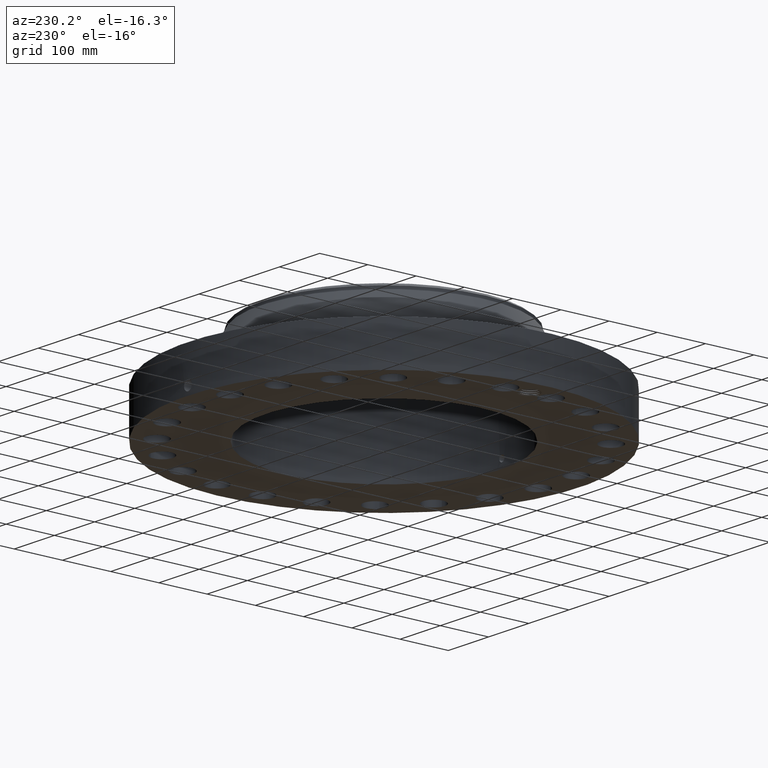
[diagram: clean part render]
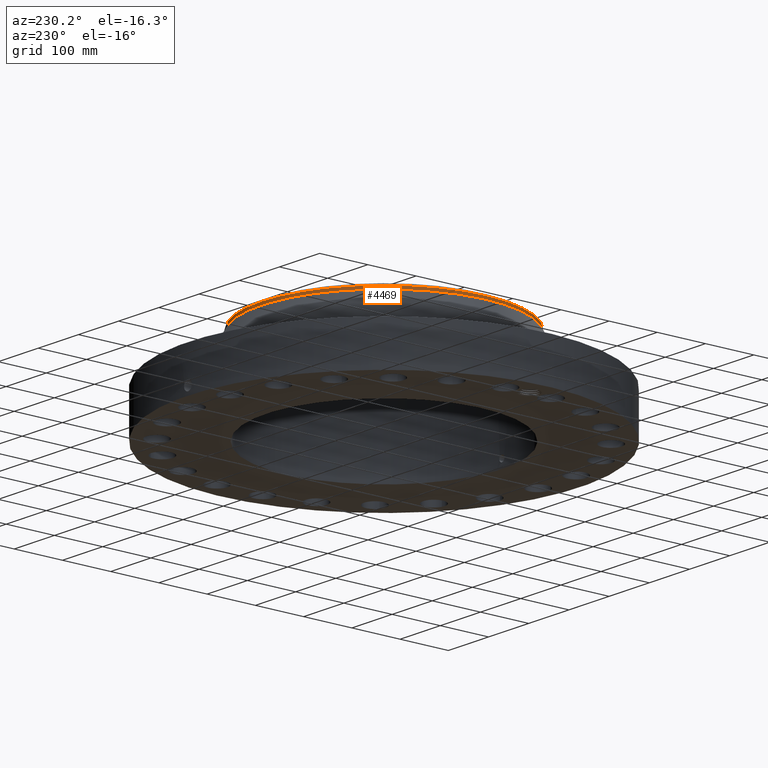
[diagram: same view with one face highlighted and labeled with its STEP entity id]
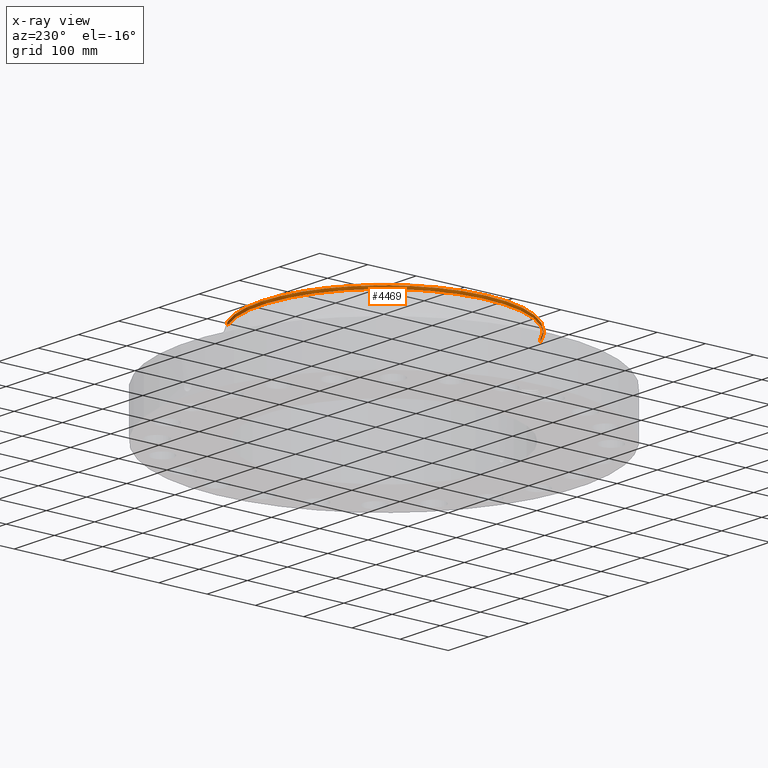
[diagram: x-ray of the same camera — body ghosted, the highlighted face saturated]
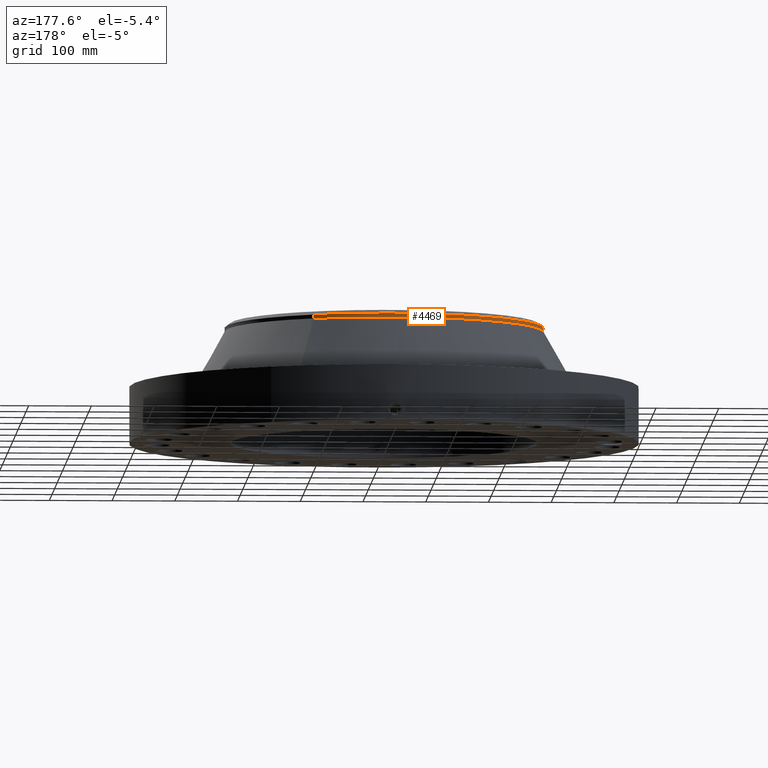
[diagram: same view with one face highlighted and labeled with its STEP entity id]
A machine part, auxiliary view. The second image highlights one B-rep face of the part: STEP entity #4469.
The next image is the same camera in x-ray: the body ghosted, the highlighted face saturated — about 1% of this face is hidden behind the body in this view.
A second angle (auxiliary view) of the same face is appended — the face is thin or edge-on in the first view.
In plain terms, the highlighted cylindrical surface (partial cylindrical patch) has radius 254 mm, axis along (0, 0, -1).
Its self-contained STEP definition (entity closure, byte-faithful):
#3645=AXIS2_PLACEMENT_3D('Circle Axis2P3D',#3643,#3644,$) ;
#4084=AXIS2_PLACEMENT_3D('Circle Axis2P3D',#4082,#4083,$) ;
#4111=AXIS2_PLACEMENT_3D('Circle Axis2P3D',#4109,#4110,$) ;
#4442=AXIS2_PLACEMENT_3D('Cylinder Axis2P3D',#4439,#4440,#4441) ;
#3621=CARTESIAN_POINT('Vertex',(4.79425538606,8.77582561894,7.28645135497)) ;
#3628=CARTESIAN_POINT('Vertex',(-4.79425538606,-8.77582561894,7.28645135497)) ;
#3643=CARTESIAN_POINT('Axis2P3D Location',(0.,0.,7.28645135497)) ;
#4079=CARTESIAN_POINT('Vertex',(-4.79425538606,8.77582561894,7.52267182741)) ;
#4082=CARTESIAN_POINT('Axis2P3D Location',(0.,0.,7.52267182741)) ;
#4086=CARTESIAN_POINT('Vertex',(-4.79425538606,-8.77582561894,7.52267182741)) ;
#4106=CARTESIAN_POINT('Vertex',(4.79425538606,8.77582561894,7.52267182741)) ;
#4109=CARTESIAN_POINT('Axis2P3D Location',(0.,0.,7.52267182741)) ;
#4439=CARTESIAN_POINT('Axis2P3D Location',(0.,0.,4.00000000002)) ;
#4444=CARTESIAN_POINT('Line Origine',(-4.79425538606,-8.77582561894,7.40456159119)) ;
#4449=CARTESIAN_POINT('Line Origine',(4.79425538606,8.77582561894,7.40456159119)) ;
#3644=DIRECTION('Axis2P3D Direction',(0.,0.,-0.0393700787402)) ;
#4083=DIRECTION('Axis2P3D Direction',(0.,0.,-0.0393700787402)) ;
#4110=DIRECTION('Axis2P3D Direction',(0.,0.,-0.0393700787402)) ;
#4440=DIRECTION('Axis2P3D Direction',(0.,0.,-0.0393700787402)) ;
#4441=DIRECTION('Axis2P3D XDirection',(-0.0188750212049,-0.0345504945626,0.)) ;
#4445=DIRECTION('Vector Direction',(0.,0.,-0.0393700787402)) ;
#4450=DIRECTION('Vector Direction',(0.,0.,-0.0393700787402)) ;
#4446=VECTOR('Line Direction',#4445,0.0393700787402) ;
#4451=VECTOR('Line Direction',#4450,0.0393700787402) ;
#4463=ORIENTED_EDGE('',*,*,#4453,.F.) ;
#4464=ORIENTED_EDGE('',*,*,#3647,.F.) ;
#4465=ORIENTED_EDGE('',*,*,#4448,.T.) ;
#4466=ORIENTED_EDGE('',*,*,#4088,.F.) ;
#4467=ORIENTED_EDGE('',*,*,#4113,.T.) ;
#4469=ADVANCED_FACE('PartBody',(#4468),#4443,.T.) ;
#3646=CIRCLE('generated circle',#3645,10.) ;
#4085=CIRCLE('generated circle',#4084,10.) ;
#4112=CIRCLE('generated circle',#4111,10.) ;
#4443=CYLINDRICAL_SURFACE('generated cylinder',#4442,10.) ;
#3647=EDGE_CURVE('',#3629,#3622,#3646,.T.) ;
#4088=EDGE_CURVE('',#4080,#4087,#4085,.F.) ;
#4113=EDGE_CURVE('',#4080,#4107,#4112,.T.) ;
#4448=EDGE_CURVE('',#3629,#4087,#4447,.F.) ;
#4453=EDGE_CURVE('',#3622,#4107,#4452,.F.) ;
#4462=EDGE_LOOP('',(#4463,#4464,#4465,#4466,#4467)) ;
#4468=FACE_OUTER_BOUND('',#4462,.T.) ;
#4447=LINE('Line',#4444,#4446) ;
#4452=LINE('Line',#4449,#4451) ;
#3622=VERTEX_POINT('',#3621) ;
#3629=VERTEX_POINT('',#3628) ;
#4080=VERTEX_POINT('',#4079) ;
#4087=VERTEX_POINT('',#4086) ;
#4107=VERTEX_POINT('',#4106) ;